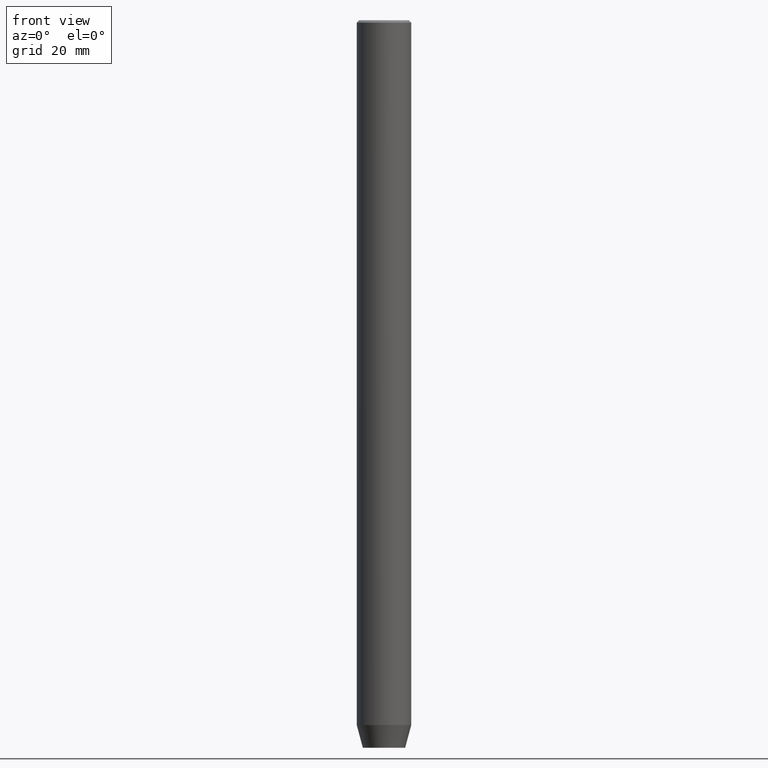
[diagram: clean part render]
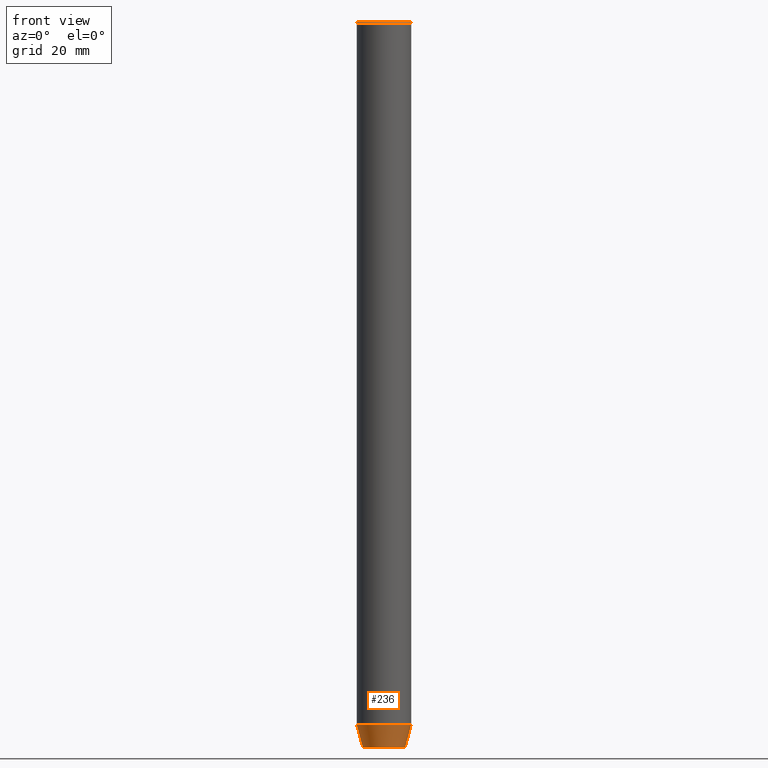
[diagram: same view with one face highlighted and labeled with its STEP entity id]
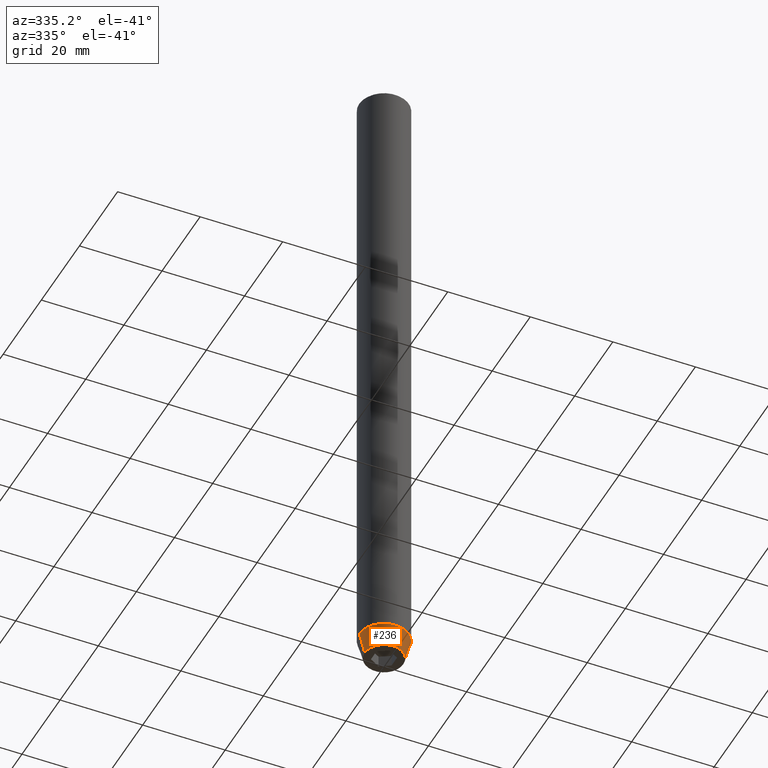
[diagram: same view with one face highlighted and labeled with its STEP entity id]
A machine part, front view. The second image highlights one B-rep face of the part: STEP entity #236.
A second angle (auxiliary view) of the same face is appended — the face is thin or edge-on in the first view.
In plain terms, the highlighted conical surface has half-angle 15 deg.
Its self-contained STEP definition (entity closure, byte-faithful):
#6 = DIRECTION ( 'NONE',  ( -0.000000000000000000, -0.000000000000000000, 1.000000000000000000 ) ) ;
#8 = VERTEX_POINT ( 'NONE', #580 ) ;
#40 = CARTESIAN_POINT ( 'NONE',  ( 6.000000000000000000, 0.000000000000000000, -154.9999999999999716 ) ) ;
#50 = ORIENTED_EDGE ( 'NONE', *, *, #363, .T. ) ;
#53 = ORIENTED_EDGE ( 'NONE', *, *, #500, .F. ) ;
#65 = LINE ( 'NONE', #246, #436 ) ;
#99 = CARTESIAN_POINT ( 'NONE',  ( 0.000000000000000000, 0.000000000000000000, -154.9999999999999716 ) ) ;
#109 = VERTEX_POINT ( 'NONE', #315 ) ;
#120 = EDGE_LOOP ( 'NONE', ( #249, #539, #50, #53 ) ) ;
#121 = CARTESIAN_POINT ( 'NONE',  ( -4.660254037844373975, 6.527522992771880386E-16, -160.0000000000000000 ) ) ;
#123 = DIRECTION ( 'NONE',  ( 0.2588190451025214056, 0.000000000000000000, 0.9659258262890680902 ) ) ;
#134 = AXIS2_PLACEMENT_3D ( 'NONE', #419, #6, #150 ) ;
#137 = DIRECTION ( 'NONE',  ( -0.000000000000000000, -0.000000000000000000, 1.000000000000000000 ) ) ;
#147 = AXIS2_PLACEMENT_3D ( 'NONE', #99, #285, #470 ) ;
#150 = DIRECTION ( 'NONE',  ( 1.000000000000000000, 0.000000000000000000, 0.000000000000000000 ) ) ;
#179 = CARTESIAN_POINT ( 'NONE',  ( -6.000000000000000000, 7.347880794884119736E-16, -154.9999999999999716 ) ) ;
#184 = DIRECTION ( 'NONE',  ( -0.2588190451025214056, 3.169619151431772953E-17, 0.9659258262890680902 ) ) ;
#185 = CARTESIAN_POINT ( 'NONE',  ( 0.000000000000000000, 0.000000000000000000, -160.0000000000000000 ) ) ;
#187 = VECTOR ( 'NONE', #123, 1000.000000000000000 ) ;
#196 = DIRECTION ( 'NONE',  ( 1.000000000000000000, 0.000000000000000000, 0.000000000000000000 ) ) ;
#232 = CIRCLE ( 'NONE', #134, 6.000000000000000000 ) ;
#236 = ADVANCED_FACE ( 'NONE', ( #512 ), #270, .T. ) ;
#246 = CARTESIAN_POINT ( 'NONE',  ( -6.000000000000000000, 7.347880794884119736E-16, -154.9999999999999716 ) ) ;
#249 = ORIENTED_EDGE ( 'NONE', *, *, #559, .F. ) ;
#263 = LINE ( 'NONE', #40, #187 ) ;
#270 = CONICAL_SURFACE ( 'NONE', #147, 6.000000000000000000, 0.2617993877991501295 ) ;
#271 = AXIS2_PLACEMENT_3D ( 'NONE', #185, #137, #196 ) ;
#282 = CIRCLE ( 'NONE', #271, 4.660254037844373975 ) ;
#285 = DIRECTION ( 'NONE',  ( -0.000000000000000000, -0.000000000000000000, 1.000000000000000000 ) ) ;
#315 = CARTESIAN_POINT ( 'NONE',  ( 4.660254037844373975, 0.000000000000000000, -160.0000000000000000 ) ) ;
#363 = EDGE_CURVE ( 'NONE', #109, #8, #263, .T. ) ;
#375 = VERTEX_POINT ( 'NONE', #121 ) ;
#408 = VERTEX_POINT ( 'NONE', #179 ) ;
#419 = CARTESIAN_POINT ( 'NONE',  ( 0.000000000000000000, 0.000000000000000000, -154.9999999999999716 ) ) ;
#436 = VECTOR ( 'NONE', #184, 1000.000000000000000 ) ;
#470 = DIRECTION ( 'NONE',  ( 1.000000000000000000, 0.000000000000000000, 0.000000000000000000 ) ) ;
#474 = EDGE_CURVE ( 'NONE', #375, #109, #282, .T. ) ;
#500 = EDGE_CURVE ( 'NONE', #408, #8, #232, .T. ) ;
#512 = FACE_OUTER_BOUND ( 'NONE', #120, .T. ) ;
#539 = ORIENTED_EDGE ( 'NONE', *, *, #474, .T. ) ;
#559 = EDGE_CURVE ( 'NONE', #375, #408, #65, .T. ) ;
#580 = CARTESIAN_POINT ( 'NONE',  ( 6.000000000000000000, 0.000000000000000000, -154.9999999999999716 ) ) ;